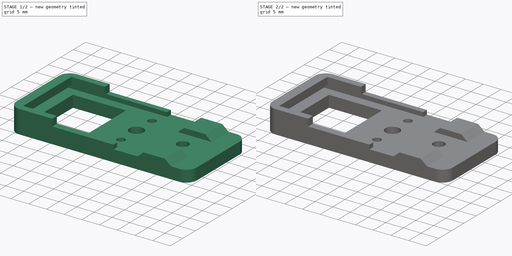
[diagram: build sequence overview — one tinted view per stage of 2, left to right]
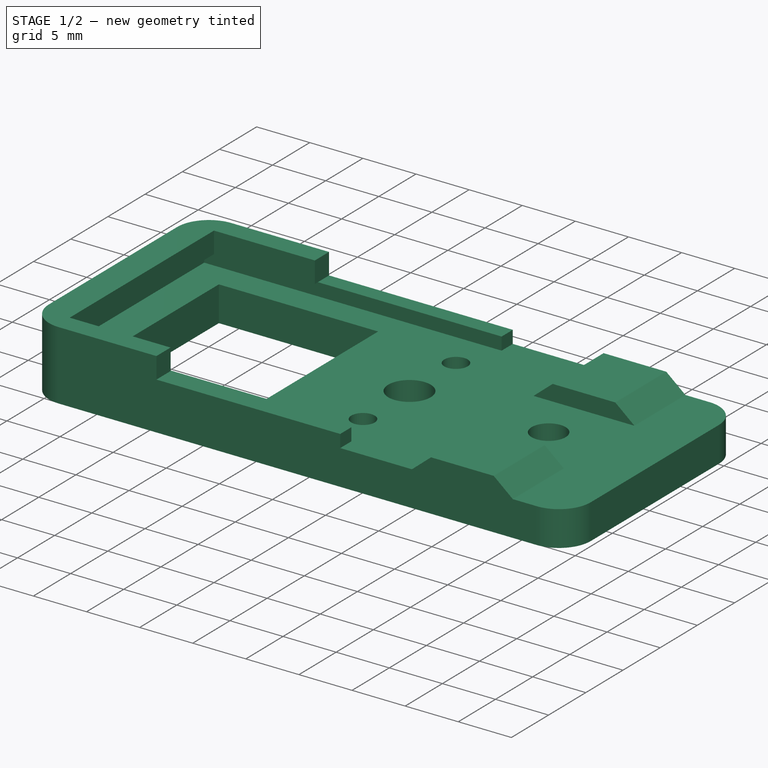
[diagram: stage 1 of 2 — iso view after this stage's code; geometry added in this stage tinted green]
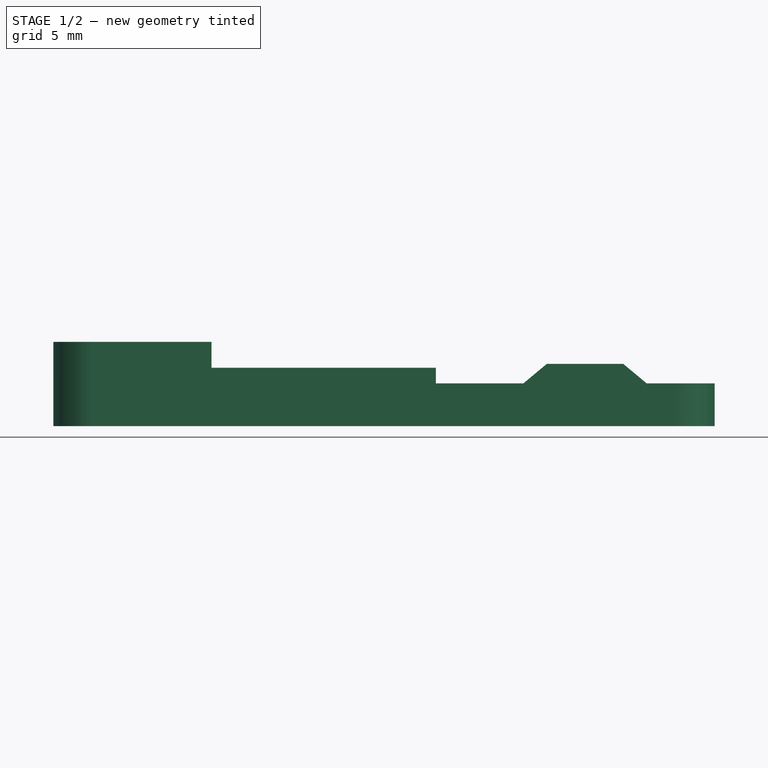
[diagram: stage 1 of 2 — front view after this stage's code; geometry added in this stage tinted green]
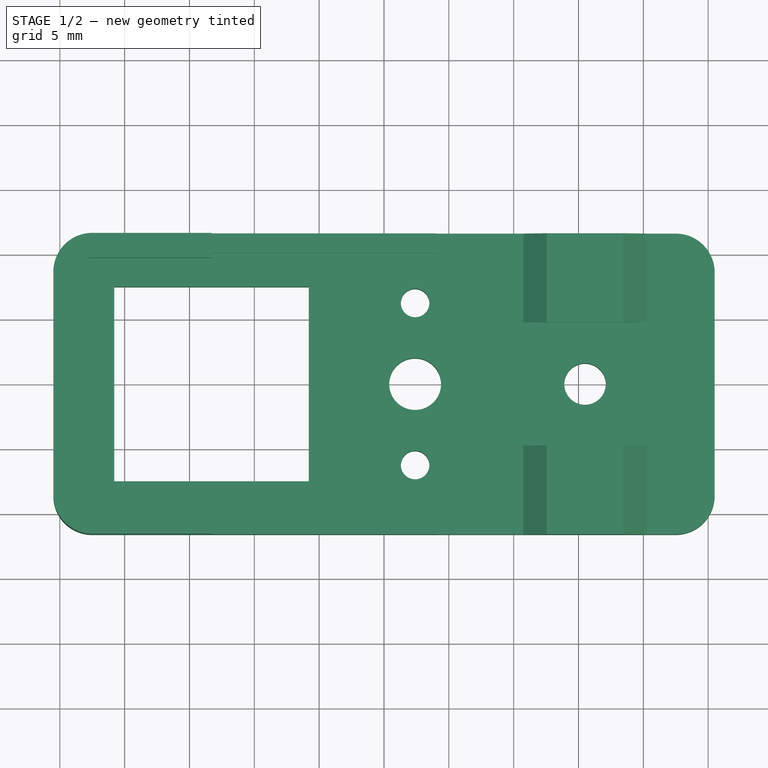
[diagram: stage 1 of 2 — top view after this stage's code; geometry added in this stage tinted green]
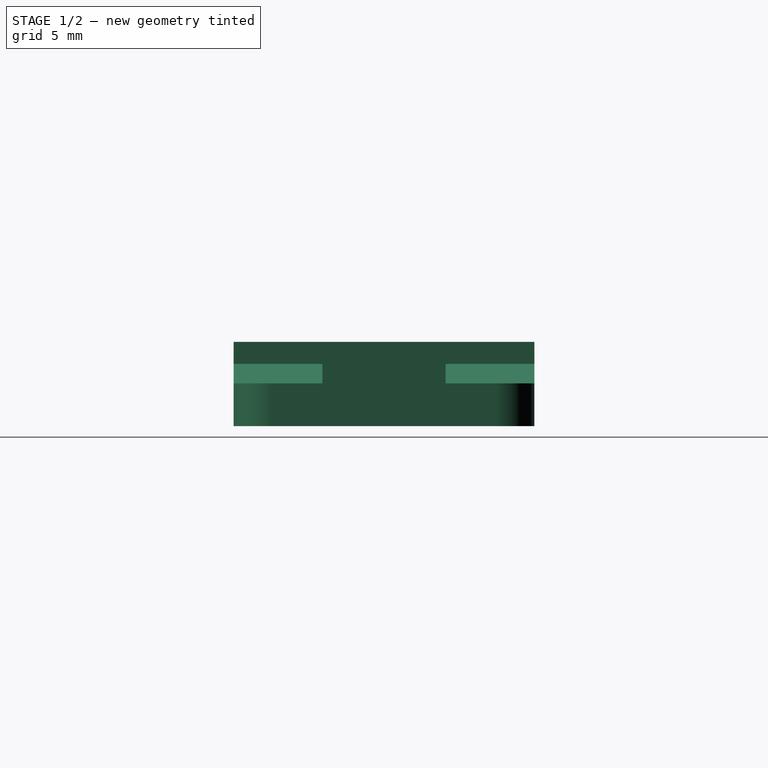
[diagram: stage 1 of 2 — right view after this stage's code; geometry added in this stage tinted green]
FCSTD DOCUMENT  (FreeCAD 0.21R33771 (Git))
Label: lamp-base-X1
License: All rights reserved
LicenseURL: http://en.wikipedia.org/wiki/All_rights_reserved
objects: Part::Feature×1, Part::Refine×1, PartDesign::FeatureBase×1, Sketcher::SketchObject×1, PartDesign::Pocket×1, PartDesign::Body×1
note: 7 computed .brp shape members not serialized (recipe doc carries the construction recipe); baked Part::Feature solids carry a one-line shape summary decoded from their .brp

FEATURE [Part::Feature] Body005
  shape: bbox 51 x 23.2 x 6.5 mm, 48 faces (baked)
FEATURE [Part::Refine] Body006
  Source = -> Body005
FEATURE [PartDesign::FeatureBase] BaseFeature
  BaseFeature = -> Body006
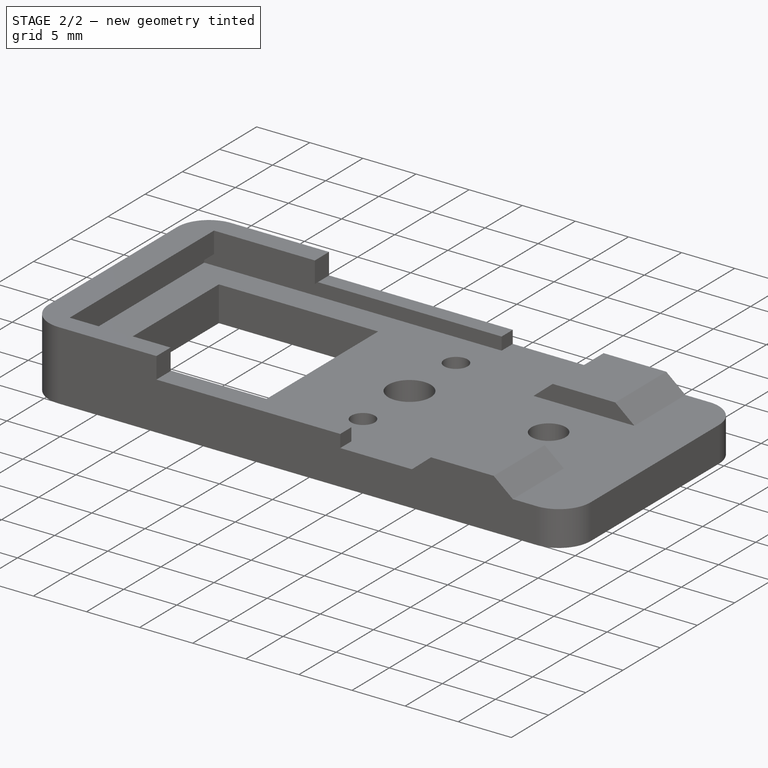
[diagram: stage 2 of 2 — iso view after this stage's code; geometry added in this stage tinted green]
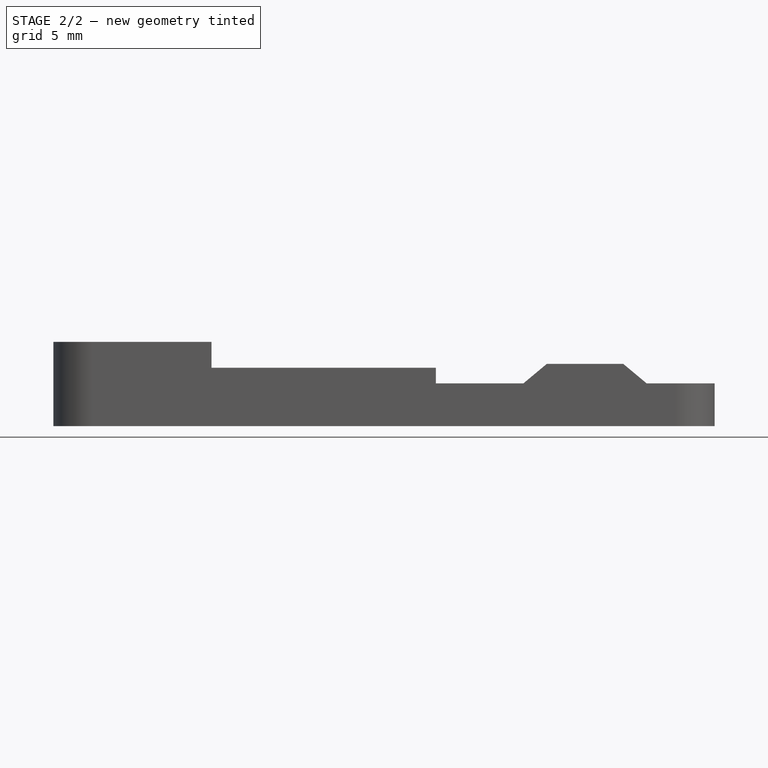
[diagram: stage 2 of 2 — front view after this stage's code; geometry added in this stage tinted green]
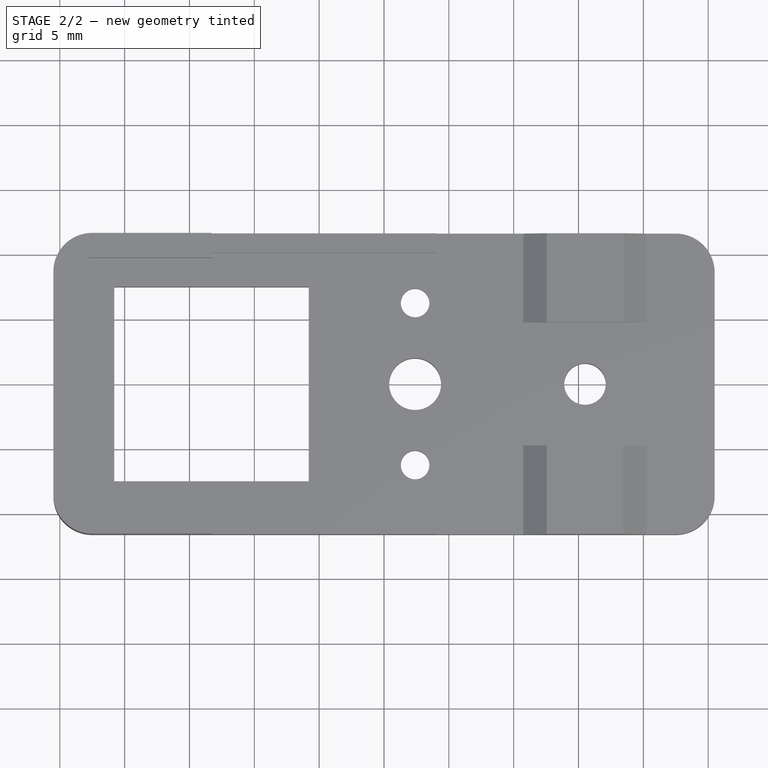
[diagram: stage 2 of 2 — top view after this stage's code; geometry added in this stage tinted green]
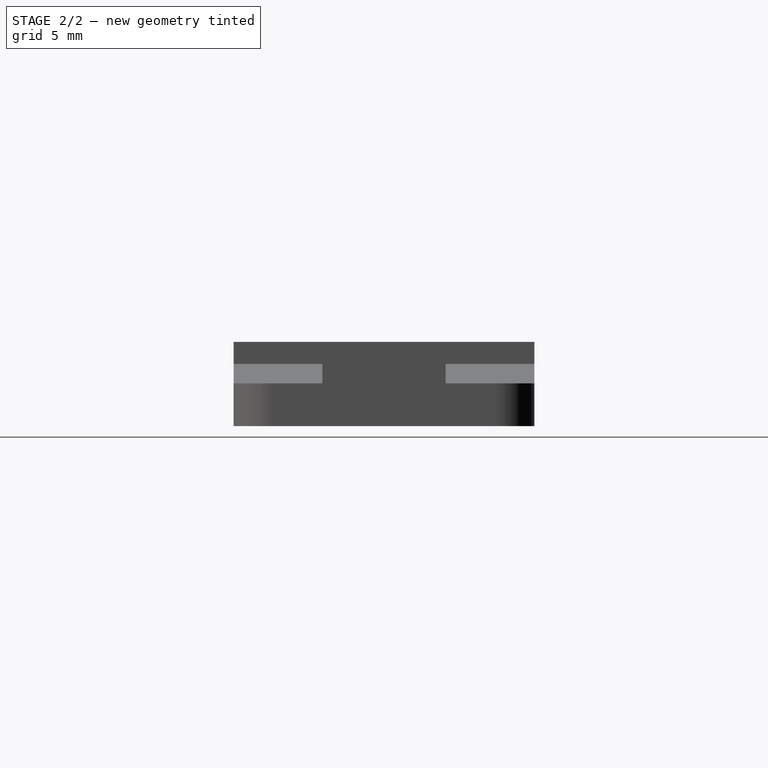
[diagram: stage 2 of 2 — right view after this stage's code; geometry added in this stage tinted green]
FEATURE [Sketcher::SketchObject] Sketch
  ExternalGeometry = -> [BaseFeature]
  FullyConstrained = true
  MapMode = 5
  Placement = pos=(0,0,-2.3) rot=(1,0,0;3.14159rad)
  Support = -> [BaseFeature]
  sketch-geometry (14):
    g0: LineSegment StartX=11.1876 StartY=4.15 StartZ=0 EndX=13.6124 EndY=4.15 EndZ=0
    g1: LineSegment StartX=13.6124 StartY=4.15 StartZ=0 EndX=14.8249 EndY=6.25 EndZ=0
    g2: LineSegment StartX=14.8249 StartY=6.25 StartZ=0 EndX=13.6124 EndY=8.35 EndZ=0
    g3: LineSegment StartX=13.6124 StartY=8.35 StartZ=0 EndX=11.1876 EndY=8.35 EndZ=0
    g4: LineSegment StartX=11.1876 StartY=8.35 StartZ=0 EndX=9.97513 EndY=6.25 EndZ=0
    g5: LineSegment StartX=9.97513 StartY=6.25 StartZ=0 EndX=11.1876 EndY=4.15 EndZ=0
    g6: Circle CenterX=12.4 CenterY=6.25 CenterZ=0 NormalX=0 NormalY=0 NormalZ=1 AngleXU=0 Radius=2.42487
    g7: LineSegment StartX=11.1876 StartY=-8.35 StartZ=0 EndX=13.6124 EndY=-8.35 EndZ=0
    g8: LineSegment StartX=13.6124 StartY=-8.35 StartZ=0 EndX=14.8249 EndY=-6.25 EndZ=0
    g9: LineSegment StartX=14.8249 StartY=-6.25 StartZ=0 EndX=13.6124 EndY=-4.15 EndZ=0
    g10: LineSegment StartX=13.6124 StartY=-4.15 StartZ=0 EndX=11.1876 EndY=-4.15 EndZ=0
    g11: LineSegment StartX=11.1876 StartY=-4.15 StartZ=0 EndX=9.97513 EndY=-6.25 EndZ=0
    g12: LineSegment StartX=9.97513 StartY=-6.25 StartZ=0 EndX=11.1876 EndY=-8.35 EndZ=0
    g13: Circle CenterX=12.4 CenterY=-6.25 CenterZ=0 NormalX=0 NormalY=0 NormalZ=1 AngleXU=0 Radius=2.42487
  constraints (32):
    c: Coincident(g0,g1)
    c: Coincident(g1,g2)
    c: Coincident(g2,g3)
    c: Coincident(g3,g4)
    c: Coincident(g4,g5)
    c: Coincident(g5,g0)
    c: Equal(g0, g1-g5) x5
    c: PointOnObject(g0,g6)
    c: PointOnObject(g1,g6)
    c: PointOnObject(g2,g6)
    c: PointOnObject(g3,g6)
    c: PointOnObject(g4,g6)
    c: PointOnObject(g5,g6)
    c: Coincident(g6,g-4)
    c: Coincident(g7,g8)
    c: Coincident(g8,g9)
    c: Coincident(g9,g10)
    c: Coincident(g10,g11)
    c: Coincident(g11,g12)
    c: Coincident(g12,g7)
    c: Equal(g7, g8-g12) x5
    c: PointOnObject(g7,g13)
    c: PointOnObject(g8,g13)
    c: PointOnObject(g9,g13)
    c: PointOnObject(g10,g13)
    c: PointOnObject(g11,g13)
    c: PointOnObject(g12,g13)
    c: Coincident(g13,g-3)
    c: Equal(g13,g6)
    c: Horizontal(g0)
    c: Horizontal(g7)
    c: DistanceY(g0,g2) = 4.2
FEATURE [PartDesign::Pocket] Pocket
  BaseFeature = -> BaseFeature
  Direction = (0,0,1)
  Length = 1.6
  Length2 = 5
  Profile = -> Sketch
  ReferenceAxis = -> Sketch [N_Axis]
  Type = 0
FEATURE [PartDesign::Body] Body
  BaseFeature = -> Body006
  Group = -> [BaseFeature,Sketch,Pocket]
  Origin = -> Origin
  Tip = -> Pocket
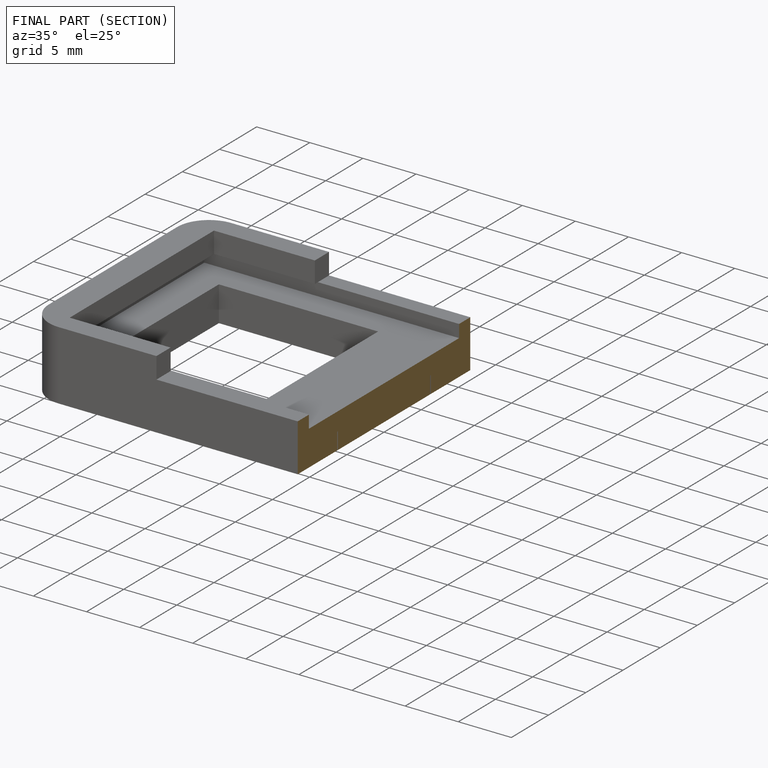
[diagram: finished part — half-section view (interior)]
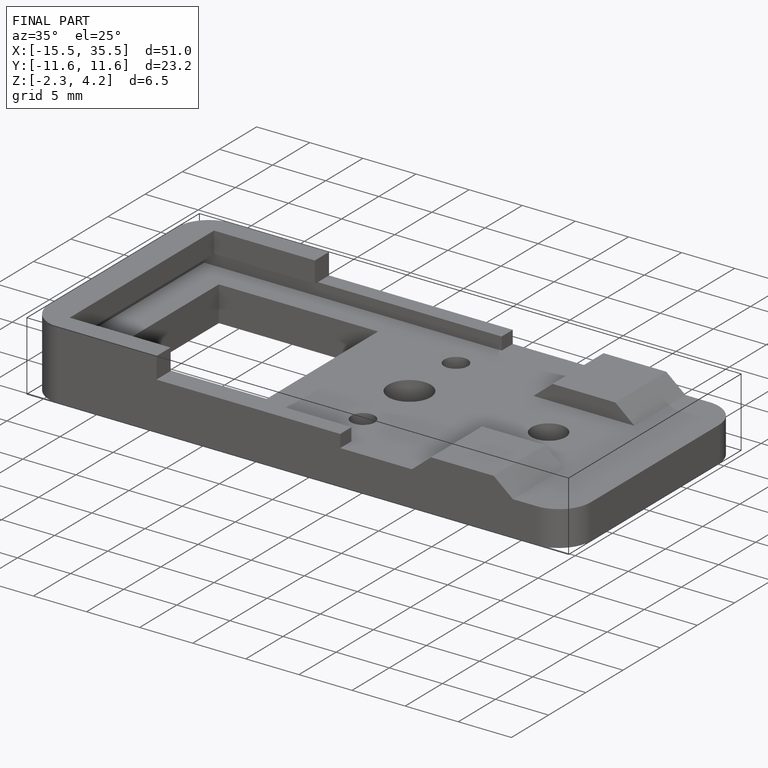
[diagram: finished part — iso view with bounding-box wireframe]
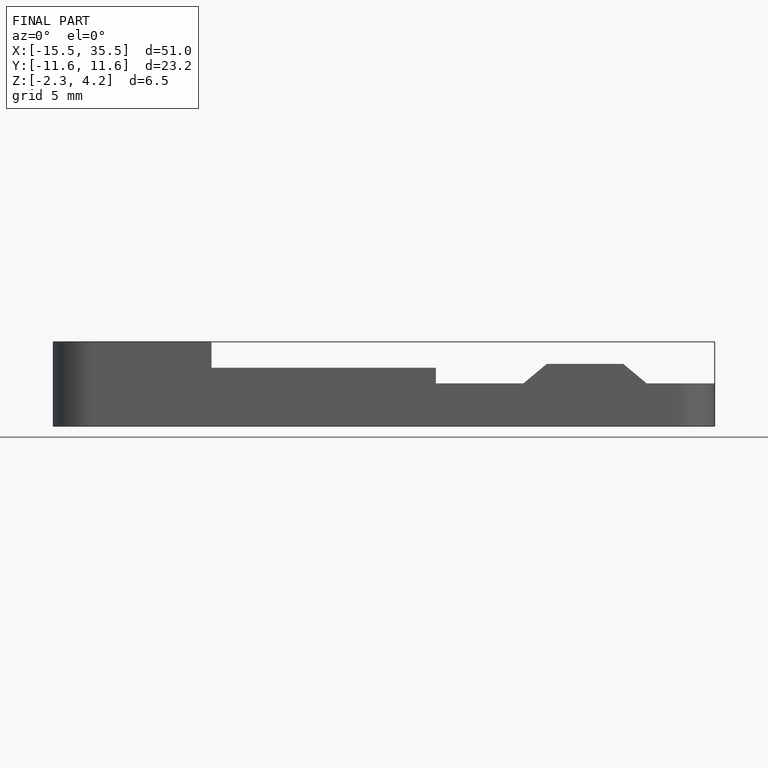
[diagram: finished part — front view with bounding-box wireframe]
